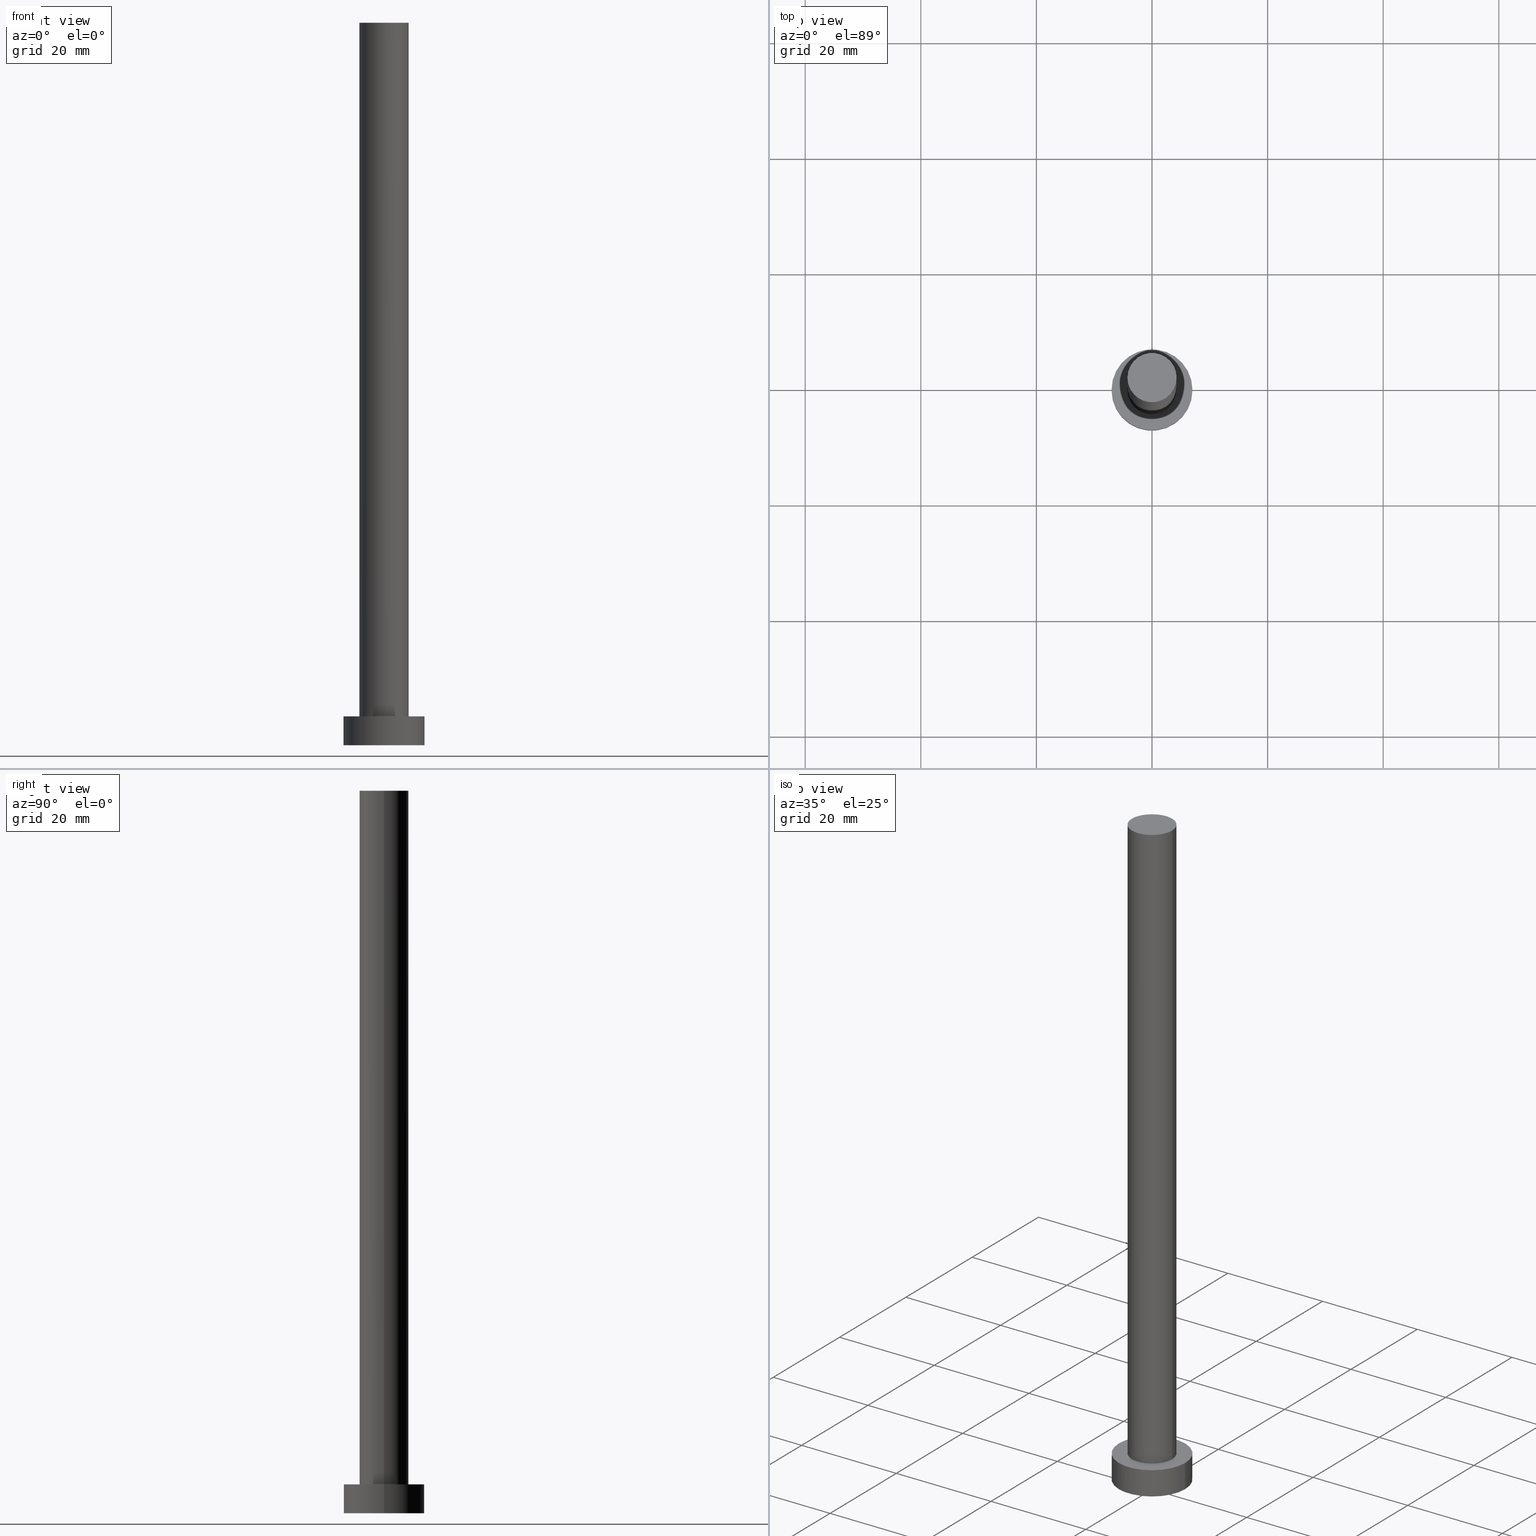
[diagram: canonical four-view strip — front | top / right | iso, engineering-drawing reading convention]
A machine part, canonical four-view strip (front | top / right | iso — engineering-drawing reading convention). The complete STEP part file that produces these views, byte-faithful:
ISO-10303-21;
HEADER;
FILE_DESCRIPTION (( 'STEP AP203' ),
    '1' );
FILE_NAME ('a0c9.STEP',
    '2023-02-12T11:38:38',
    ( '' ),
    ( '' ),
    'SwSTEP 2.0',
    'SolidWorks 2019',
    '' );
FILE_SCHEMA (( 'CONFIG_CONTROL_DESIGN' ));
ENDSEC;

DATA;
#1 = DIRECTION ( 'NONE',  ( -1.000000000000000000, 0.000000000000000000, 0.000000000000000000 ) ) ;
#2 = CLOSED_SHELL ( 'NONE', ( #228, #4, #97, #40, #191, #223, #181 ) ) ;
#3 = DIRECTION ( 'NONE',  ( 0.000000000000000000, 0.000000000000000000, 1.000000000000000000 ) ) ;
#4 = ADVANCED_FACE ( 'NONE', ( #84 ), #5, .T. ) ;
#5 = CYLINDRICAL_SURFACE ( 'NONE', #35, 7.000000000000000000 ) ;
#6 = DATE_AND_TIME ( #60, #253 ) ;
#7 = AXIS2_PLACEMENT_3D ( 'NONE', #237, #81, #158 ) ;
#8 = APPROVAL_DATE_TIME ( #107, #167 ) ;
#9 = CIRCLE ( 'NONE', #155, 7.000000000000000000 ) ;
#10 = SHAPE_DEFINITION_REPRESENTATION ( #244, #153 ) ;
#11 = DESIGN_CONTEXT ( 'detailed design', #219, 'design' ) ;
#12 = LOCAL_TIME ( 12, 38, 38.00000000000000000, #36 ) ;
#13 = APPROVAL ( #250, 'NEUR�EN�' ) ;
#14 = EDGE_CURVE ( 'NONE', #110, #33, #54, .T. ) ;
#15 = DIRECTION ( 'NONE',  ( 1.000000000000000000, 0.000000000000000000, 0.000000000000000000 ) ) ;
#16 = ORIENTED_EDGE ( 'NONE', *, *, #132, .F. ) ;
#17 = CARTESIAN_POINT ( 'NONE',  ( -7.000000000000000000, 0.000000000000000000, 5.000000000000000000 ) ) ;
#18 = DIRECTION ( 'NONE',  ( 1.000000000000000000, 0.000000000000000000, 0.000000000000000000 ) ) ;
#19 = DIRECTION ( 'NONE',  ( 0.000000000000000000, 0.000000000000000000, 1.000000000000000000 ) ) ;
#20 = ORIENTED_EDGE ( 'NONE', *, *, #27, .F. ) ;
#21 = ORIENTED_EDGE ( 'NONE', *, *, #157, .T. ) ;
#22 = EDGE_CURVE ( 'NONE', #67, #37, #70, .T. ) ;
#23 = AXIS2_PLACEMENT_3D ( 'NONE', #225, #224, #207 ) ;
#24 = CARTESIAN_POINT ( 'NONE',  ( 0.000000000000000000, 0.000000000000000000, 5.000000000000000000 ) ) ;
#25 = VERTEX_POINT ( 'NONE', #120 ) ;
#26 = DATE_TIME_ROLE ( 'classification_date' ) ;
#27 = EDGE_CURVE ( 'NONE', #25, #233, #182, .T. ) ;
#28 = DIRECTION ( 'NONE',  ( 1.000000000000000000, 0.000000000000000000, 0.000000000000000000 ) ) ;
#29 = CC_DESIGN_APPROVAL ( #13, ( #175 ) ) ;
#30 = COORDINATED_UNIVERSAL_TIME_OFFSET ( 1, 0, .AHEAD. ) ;
#31 = CC_DESIGN_PERSON_AND_ORGANIZATION_ASSIGNMENT ( #178, #124, ( #117 ) ) ;
#32 = APPROVAL_STATUS ( 'not_yet_approved' ) ;
#33 = VERTEX_POINT ( 'NONE', #172 ) ;
#34 = PRODUCT_DEFINITION ( 'NEZN�M�', '', #117, #11 ) ;
#35 = AXIS2_PLACEMENT_3D ( 'NONE', #105, #179, #1 ) ;
#36 = COORDINATED_UNIVERSAL_TIME_OFFSET ( 1, 0, .AHEAD. ) ;
#37 = VERTEX_POINT ( 'NONE', #186 ) ;
#38 = DIRECTION ( 'NONE',  ( 0.000000000000000000, 0.000000000000000000, 1.000000000000000000 ) ) ;
#39 = DIRECTION ( 'NONE',  ( 0.000000000000000000, 0.000000000000000000, 1.000000000000000000 ) ) ;
#40 = ADVANCED_FACE ( 'NONE', ( #162, #203 ), #184, .T. ) ;
#41 = CARTESIAN_POINT ( 'NONE',  ( 0.000000000000000000, 0.000000000000000000, 125.0000000000000000 ) ) ;
#42 = AXIS2_PLACEMENT_3D ( 'NONE', #227, #208, #143 ) ;
#43 = CIRCLE ( 'NONE', #44, 7.000000000000000000 ) ;
#44 = AXIS2_PLACEMENT_3D ( 'NONE', #73, #55, #18 ) ;
#45 = PERSON_AND_ORGANIZATION ( #232, #90 ) ;
#46 = COORDINATED_UNIVERSAL_TIME_OFFSET ( 1, 0, .AHEAD. ) ;
#47 = DIRECTION ( 'NONE',  ( 0.000000000000000000, 0.000000000000000000, 1.000000000000000000 ) ) ;
#48 = ORIENTED_EDGE ( 'NONE', *, *, #27, .T. ) ;
#49 = CARTESIAN_POINT ( 'NONE',  ( -4.250000000000000000, 0.000000000000000000, 125.0000000000000000 ) ) ;
#50 = DIRECTION ( 'NONE',  ( 0.000000000000000000, 0.000000000000000000, 1.000000000000000000 ) ) ;
#51 = PERSON_AND_ORGANIZATION_ROLE ( 'design_owner' ) ;
#52 = ORIENTED_EDGE ( 'NONE', *, *, #151, .T. ) ;
#53 = FACE_OUTER_BOUND ( 'NONE', #79, .T. ) ;
#54 = CIRCLE ( 'NONE', #99, 4.250000000000000000 ) ;
#55 = DIRECTION ( 'NONE',  ( 0.000000000000000000, 0.000000000000000000, 1.000000000000000000 ) ) ;
#56 = EDGE_CURVE ( 'NONE', #37, #67, #148, .T. ) ;
#57 = ORIENTED_EDGE ( 'NONE', *, *, #56, .F. ) ;
#58 = CARTESIAN_POINT ( 'NONE',  ( 0.000000000000000000, 0.000000000000000000, 125.0000000000000000 ) ) ;
#59 = FACE_OUTER_BOUND ( 'NONE', #71, .T. ) ;
#60 = CALENDAR_DATE ( 2023, 12, 2 ) ;
#61 = CARTESIAN_POINT ( 'NONE',  ( 0.000000000000000000, 0.000000000000000000, 0.000000000000000000 ) ) ;
#62 = LOCAL_TIME ( 12, 38, 38.00000000000000000, #74 ) ;
#63 = ORIENTED_EDGE ( 'NONE', *, *, #212, .T. ) ;
#64 = VERTEX_POINT ( 'NONE', #92 ) ;
#65 = UNCERTAINTY_MEASURE_WITH_UNIT (LENGTH_MEASURE( 1.000000000000000082E-05 ), #166, 'distance_accuracy_value', 'NONE');
#66 = CC_DESIGN_APPROVAL ( #167, ( #34 ) ) ;
#67 = VERTEX_POINT ( 'NONE', #49 ) ;
#68 = APPLICATION_PROTOCOL_DEFINITION ( 'international standard', 'config_control_design', 1994, #96 ) ;
#69 = LINE ( 'NONE', #137, #134 ) ;
#70 = CIRCLE ( 'NONE', #226, 4.250000000000000000 ) ;
#71 = EDGE_LOOP ( 'NONE', ( #129, #251 ) ) ;
#72 = AXIS2_PLACEMENT_3D ( 'NONE', #144, #50, #94 ) ;
#73 = CARTESIAN_POINT ( 'NONE',  ( 0.000000000000000000, 0.000000000000000000, 5.000000000000000000 ) ) ;
#74 = COORDINATED_UNIVERSAL_TIME_OFFSET ( 1, 0, .AHEAD. ) ;
#75 = MANIFOLD_SOLID_BREP ( 'P�idat vysunut�m3', #2 ) ;
#76 = AXIS2_PLACEMENT_3D ( 'NONE', #61, #187, #150 ) ;
#77 = CARTESIAN_POINT ( 'NONE',  ( 0.000000000000000000, 0.000000000000000000, 0.000000000000000000 ) ) ;
#78 = CIRCLE ( 'NONE', #133, 4.250000000000000000 ) ;
#79 = EDGE_LOOP ( 'NONE', ( #171, #20, #164, #127 ) ) ;
#80 = CC_DESIGN_DATE_AND_TIME_ASSIGNMENT ( #195, #26, ( #175 ) ) ;
#81 = DIRECTION ( 'NONE',  ( 0.000000000000000000, 0.000000000000000000, 1.000000000000000000 ) ) ;
#82 = CARTESIAN_POINT ( 'NONE',  ( 0.000000000000000000, 0.000000000000000000, 5.000000000000000000 ) ) ;
#83 = CALENDAR_DATE ( 2023, 12, 2 ) ;
#84 = FACE_OUTER_BOUND ( 'NONE', #230, .T. ) ;
#85 = CARTESIAN_POINT ( 'NONE',  ( 0.000000000000000000, 0.000000000000000000, 125.0000000000000000 ) ) ;
#86 = ORIENTED_EDGE ( 'NONE', *, *, #157, .F. ) ;
#87 = CALENDAR_DATE ( 2023, 12, 2 ) ;
#88 = EDGE_CURVE ( 'NONE', #67, #110, #248, .T. ) ;
#89 = ORIENTED_EDGE ( 'NONE', *, *, #14, .F. ) ;
#90 = ORGANIZATION ( 'NEUR�EN�', 'NEUR�EN�', '' ) ;
#91 = LOCAL_TIME ( 12, 38, 38.00000000000000000, #46 ) ;
#92 = CARTESIAN_POINT ( 'NONE',  ( 7.000000000000000000, 8.572527594031473190E-16, 0.000000000000000000 ) ) ;
#93 = CARTESIAN_POINT ( 'NONE',  ( 0.000000000000000000, 0.000000000000000000, 5.000000000000000000 ) ) ;
#94 = DIRECTION ( 'NONE',  ( 1.000000000000000000, 0.000000000000000000, -0.000000000000000000 ) ) ;
#95 = ORIENTED_EDGE ( 'NONE', *, *, #247, .T. ) ;
#96 = APPLICATION_CONTEXT ( 'configuration controlled 3d designs of mechanical parts and assemblies' ) ;
#97 = ADVANCED_FACE ( 'NONE', ( #53 ), #165, .T. ) ;
#98 = FACE_OUTER_BOUND ( 'NONE', #138, .T. ) ;
#99 = AXIS2_PLACEMENT_3D ( 'NONE', #82, #214, #106 ) ;
#100 = DIRECTION ( 'NONE',  ( -0.000000000000000000, -0.000000000000000000, -1.000000000000000000 ) ) ;
#101 = ORIENTED_EDGE ( 'NONE', *, *, #14, .T. ) ;
#102 = DIRECTION ( 'NONE',  ( -0.000000000000000000, -0.000000000000000000, -1.000000000000000000 ) ) ;
#103 = VERTEX_POINT ( 'NONE', #145 ) ;
#104 = DIRECTION ( 'NONE',  ( 1.000000000000000000, 0.000000000000000000, 0.000000000000000000 ) ) ;
#105 = CARTESIAN_POINT ( 'NONE',  ( 0.000000000000000000, 0.000000000000000000, 5.000000000000000000 ) ) ;
#106 = DIRECTION ( 'NONE',  ( 1.000000000000000000, 0.000000000000000000, 0.000000000000000000 ) ) ;
#107 = DATE_AND_TIME ( #146, #113 ) ;
#108 = EDGE_LOOP ( 'NONE', ( #205, #222 ) ) ;
#109 = EDGE_CURVE ( 'NONE', #103, #64, #202, .T. ) ;
#110 = VERTEX_POINT ( 'NONE', #136 ) ;
#111 = APPROVAL_DATE_TIME ( #189, #13 ) ;
#112 = VECTOR ( 'NONE', #242, 1000.000000000000000 ) ;
#113 = LOCAL_TIME ( 12, 38, 38.00000000000000000, #30 ) ;
#114 = DIRECTION ( 'NONE',  ( -0.000000000000000000, -0.000000000000000000, -1.000000000000000000 ) ) ;
#115 = CARTESIAN_POINT ( 'NONE',  ( -4.250000000000000000, 0.000000000000000000, 125.0000000000000000 ) ) ;
#116 = VECTOR ( 'NONE', #152, 1000.000000000000000 ) ;
#117 = PRODUCT_DEFINITION_FORMATION_WITH_SPECIFIED_SOURCE ( 'LIBOVOLN�', '', #154, .NOT_KNOWN. ) ;
#118 = CC_DESIGN_PERSON_AND_ORGANIZATION_ASSIGNMENT ( #125, #239, ( #117 ) ) ;
#119 = CALENDAR_DATE ( 2023, 12, 2 ) ;
#120 = CARTESIAN_POINT ( 'NONE',  ( -7.000000000000000000, 0.000000000000000000, 5.000000000000000000 ) ) ;
#121 = AXIS2_PLACEMENT_3D ( 'NONE', #24, #38, #15 ) ;
#122 = DIRECTION ( 'NONE',  ( -0.000000000000000000, -0.000000000000000000, -1.000000000000000000 ) ) ;
#123 = PLANE ( 'NONE',  #229 ) ;
#124 = PERSON_AND_ORGANIZATION_ROLE ( 'creator' ) ;
#125 = PERSON_AND_ORGANIZATION ( #232, #90 ) ;
#126 = CC_DESIGN_DATE_AND_TIME_ASSIGNMENT ( #128, #185, ( #34 ) ) ;
#127 = ORIENTED_EDGE ( 'NONE', *, *, #109, .T. ) ;
#128 = DATE_AND_TIME ( #87, #91 ) ;
#129 = ORIENTED_EDGE ( 'NONE', *, *, #22, .T. ) ;
#130 = APPROVAL_PERSON_ORGANIZATION ( #173, #13, #215 ) ;
#131 = EDGE_LOOP ( 'NONE', ( #255, #140, #190, #101 ) ) ;
#132 = EDGE_CURVE ( 'NONE', #25, #103, #194, .T. ) ;
#133 = AXIS2_PLACEMENT_3D ( 'NONE', #240, #47, #28 ) ;
#134 = VECTOR ( 'NONE', #213, 1000.000000000000000 ) ;
#135 = PERSON_AND_ORGANIZATION ( #232, #90 ) ;
#136 = CARTESIAN_POINT ( 'NONE',  ( -4.250000000000000000, 0.000000000000000000, 5.000000000000000000 ) ) ;
#137 = CARTESIAN_POINT ( 'NONE',  ( 7.000000000000000000, 8.572527594031473190E-16, 5.000000000000000000 ) ) ;
#138 = EDGE_LOOP ( 'NONE', ( #57, #63, #95, #218 ) ) ;
#139 = COORDINATED_UNIVERSAL_TIME_OFFSET ( 1, 0, .AHEAD. ) ;
#140 = ORIENTED_EDGE ( 'NONE', *, *, #22, .F. ) ;
#141 = PERSON_AND_ORGANIZATION ( #232, #90 ) ;
#142 = CC_DESIGN_PERSON_AND_ORGANIZATION_ASSIGNMENT ( #45, #217, ( #34 ) ) ;
#143 = DIRECTION ( 'NONE',  ( 1.000000000000000000, 0.000000000000000000, 0.000000000000000000 ) ) ;
#144 = CARTESIAN_POINT ( 'NONE',  ( 0.000000000000000000, 0.000000000000000000, 125.0000000000000000 ) ) ;
#145 = CARTESIAN_POINT ( 'NONE',  ( -7.000000000000000000, 0.000000000000000000, 0.000000000000000000 ) ) ;
#146 = CALENDAR_DATE ( 2023, 12, 2 ) ;
#147 = DIRECTION ( 'NONE',  ( -1.000000000000000000, 0.000000000000000000, 0.000000000000000000 ) ) ;
#148 = CIRCLE ( 'NONE', #42, 4.250000000000000000 ) ;
#149 = AXIS2_PLACEMENT_3D ( 'NONE', #41, #122, #197 ) ;
#150 = DIRECTION ( 'NONE',  ( 1.000000000000000000, 0.000000000000000000, 0.000000000000000000 ) ) ;
#151 = EDGE_CURVE ( 'NONE', #233, #64, #69, .T. ) ;
#152 = DIRECTION ( 'NONE',  ( -0.000000000000000000, -0.000000000000000000, -1.000000000000000000 ) ) ;
#153 = ADVANCED_BREP_SHAPE_REPRESENTATION ( 'a0c9', ( #75, #23 ), #199 ) ;
#154 = PRODUCT ( 'a0c9', 'a0c9', '', ( #206 ) ) ;
#155 = AXIS2_PLACEMENT_3D ( 'NONE', #77, #19, #104 ) ;
#156 = FACE_OUTER_BOUND ( 'NONE', #131, .T. ) ;
#157 = EDGE_CURVE ( 'NONE', #233, #25, #43, .T. ) ;
#158 = DIRECTION ( 'NONE',  ( 1.000000000000000000, 0.000000000000000000, -0.000000000000000000 ) ) ;
#159 = PERSON_AND_ORGANIZATION ( #232, #90 ) ;
#160 = APPROVAL_STATUS ( 'not_yet_approved' ) ;
#161 = APPROVAL_DATE_TIME ( #6, #200 ) ;
#162 = FACE_BOUND ( 'NONE', #254, .T. ) ;
#163 = ORIENTED_EDGE ( 'NONE', *, *, #204, .T. ) ;
#164 = ORIENTED_EDGE ( 'NONE', *, *, #132, .T. ) ;
#165 = CYLINDRICAL_SURFACE ( 'NONE', #193, 7.000000000000000000 ) ;
#166 =( LENGTH_UNIT ( ) NAMED_UNIT ( * ) SI_UNIT ( .MILLI., .METRE. ) );
#167 = APPROVAL ( #32, 'NEUR�EN�' ) ;
#168 = PERSON_AND_ORGANIZATION ( #232, #90 ) ;
#169 = FACE_OUTER_BOUND ( 'NONE', #108, .T. ) ;
#170 = APPROVAL_ROLE ( '' ) ;
#171 = ORIENTED_EDGE ( 'NONE', *, *, #151, .F. ) ;
#172 = CARTESIAN_POINT ( 'NONE',  ( 4.250000000000000000, 5.204748896376250699E-16, 5.000000000000000000 ) ) ;
#173 = PERSON_AND_ORGANIZATION ( #232, #90 ) ;
#174 = DIRECTION ( 'NONE',  ( 1.000000000000000000, 0.000000000000000000, 0.000000000000000000 ) ) ;
#175 = SECURITY_CLASSIFICATION ( '', '', #201 ) ;
#176 = CYLINDRICAL_SURFACE ( 'NONE', #183, 4.250000000000000000 ) ;
#177 = DIRECTION ( 'NONE',  ( -1.000000000000000000, 0.000000000000000000, 0.000000000000000000 ) ) ;
#178 = PERSON_AND_ORGANIZATION ( #232, #90 ) ;
#179 = DIRECTION ( 'NONE',  ( -0.000000000000000000, -0.000000000000000000, -1.000000000000000000 ) ) ;
#180 = CARTESIAN_POINT ( 'NONE',  ( 0.000000000000000000, 0.000000000000000000, 0.000000000000000000 ) ) ;
#181 = ADVANCED_FACE ( 'NONE', ( #59 ), #210, .T. ) ;
#182 = CIRCLE ( 'NONE', #121, 7.000000000000000000 ) ;
#183 = AXIS2_PLACEMENT_3D ( 'NONE', #58, #102, #177 ) ;
#184 = PLANE ( 'NONE',  #7 ) ;
#185 = DATE_TIME_ROLE ( 'creation_date' ) ;
#186 = CARTESIAN_POINT ( 'NONE',  ( 4.250000000000000000, 5.204748896376250699E-16, 125.0000000000000000 ) ) ;
#187 = DIRECTION ( 'NONE',  ( 0.000000000000000000, 0.000000000000000000, 1.000000000000000000 ) ) ;
#188 = CC_DESIGN_PERSON_AND_ORGANIZATION_ASSIGNMENT ( #168, #51, ( #154 ) ) ;
#189 = DATE_AND_TIME ( #119, #62 ) ;
#190 = ORIENTED_EDGE ( 'NONE', *, *, #88, .T. ) ;
#191 = ADVANCED_FACE ( 'NONE', ( #169 ), #123, .F. ) ;
#192 = EDGE_LOOP ( 'NONE', ( #48, #21 ) ) ;
#193 = AXIS2_PLACEMENT_3D ( 'NONE', #93, #114, #147 ) ;
#194 = LINE ( 'NONE', #17, #116 ) ;
#195 = DATE_AND_TIME ( #83, #12 ) ;
#196 = DIRECTION ( 'NONE',  ( 1.000000000000000000, 0.000000000000000000, -0.000000000000000000 ) ) ;
#197 = DIRECTION ( 'NONE',  ( -1.000000000000000000, 0.000000000000000000, 0.000000000000000000 ) ) ;
#198 = APPROVAL_PERSON_ORGANIZATION ( #159, #200, #235 ) ;
#199 =( GEOMETRIC_REPRESENTATION_CONTEXT ( 3 ) GLOBAL_UNCERTAINTY_ASSIGNED_CONTEXT ( ( #65 ) ) GLOBAL_UNIT_ASSIGNED_CONTEXT ( ( #166, #245, #209 ) ) REPRESENTATION_CONTEXT ( 'NONE', 'WORKASPACE' ) );
#200 = APPROVAL ( #160, 'NEUR�EN�' ) ;
#201 = SECURITY_CLASSIFICATION_LEVEL ( 'unclassified' ) ;
#202 = CIRCLE ( 'NONE', #76, 7.000000000000000000 ) ;
#203 = FACE_OUTER_BOUND ( 'NONE', #192, .T. ) ;
#204 = EDGE_CURVE ( 'NONE', #64, #103, #9, .T. ) ;
#205 = ORIENTED_EDGE ( 'NONE', *, *, #109, .F. ) ;
#206 = MECHANICAL_CONTEXT ( 'NONE', #96, 'mechanical' ) ;
#207 = DIRECTION ( 'NONE',  ( 1.000000000000000000, 0.000000000000000000, 0.000000000000000000 ) ) ;
#208 = DIRECTION ( 'NONE',  ( 0.000000000000000000, 0.000000000000000000, 1.000000000000000000 ) ) ;
#209 =( NAMED_UNIT ( * ) SI_UNIT ( $, .STERADIAN. ) SOLID_ANGLE_UNIT ( ) );
#210 = PLANE ( 'NONE',  #72 ) ;
#211 = PERSON_AND_ORGANIZATION_ROLE ( 'classification_officer' ) ;
#212 = EDGE_CURVE ( 'NONE', #37, #33, #216, .T. ) ;
#213 = DIRECTION ( 'NONE',  ( -0.000000000000000000, -0.000000000000000000, -1.000000000000000000 ) ) ;
#214 = DIRECTION ( 'NONE',  ( 0.000000000000000000, 0.000000000000000000, 1.000000000000000000 ) ) ;
#215 = APPROVAL_ROLE ( '' ) ;
#216 = LINE ( 'NONE', #234, #243 ) ;
#217 = PERSON_AND_ORGANIZATION_ROLE ( 'creator' ) ;
#218 = ORIENTED_EDGE ( 'NONE', *, *, #88, .F. ) ;
#219 = APPLICATION_CONTEXT ( 'configuration controlled 3d designs of mechanical parts and assemblies' ) ;
#220 = PRODUCT_RELATED_PRODUCT_CATEGORY ( 'detail', '', ( #154 ) ) ;
#221 = APPROVAL_PERSON_ORGANIZATION ( #135, #167, #170 ) ;
#222 = ORIENTED_EDGE ( 'NONE', *, *, #204, .F. ) ;
#223 = ADVANCED_FACE ( 'NONE', ( #156 ), #231, .T. ) ;
#224 = DIRECTION ( 'NONE',  ( 0.000000000000000000, 0.000000000000000000, 1.000000000000000000 ) ) ;
#225 = CARTESIAN_POINT ( 'NONE',  ( 0.000000000000000000, 0.000000000000000000, 0.000000000000000000 ) ) ;
#226 = AXIS2_PLACEMENT_3D ( 'NONE', #85, #3, #174 ) ;
#227 = CARTESIAN_POINT ( 'NONE',  ( 0.000000000000000000, 0.000000000000000000, 125.0000000000000000 ) ) ;
#228 = ADVANCED_FACE ( 'NONE', ( #98 ), #176, .T. ) ;
#229 = AXIS2_PLACEMENT_3D ( 'NONE', #180, #39, #196 ) ;
#230 = EDGE_LOOP ( 'NONE', ( #86, #52, #163, #16 ) ) ;
#231 = CYLINDRICAL_SURFACE ( 'NONE', #149, 4.250000000000000000 ) ;
#232 = PERSON ( 'NEUR�EN�', 'NEUR�EN�', 'NEUR�EN�', ('NEUR�EN�'), ('NEUR�EN�'), ('NEUR�EN�') ) ;
#233 = VERTEX_POINT ( 'NONE', #238 ) ;
#234 = CARTESIAN_POINT ( 'NONE',  ( 4.250000000000000000, 5.204748896376250699E-16, 125.0000000000000000 ) ) ;
#235 = APPROVAL_ROLE ( '' ) ;
#236 = CC_DESIGN_PERSON_AND_ORGANIZATION_ASSIGNMENT ( #141, #211, ( #175 ) ) ;
#237 = CARTESIAN_POINT ( 'NONE',  ( 0.000000000000000000, 0.000000000000000000, 5.000000000000000000 ) ) ;
#238 = CARTESIAN_POINT ( 'NONE',  ( 7.000000000000000000, 8.572527594031473190E-16, 5.000000000000000000 ) ) ;
#239 = PERSON_AND_ORGANIZATION_ROLE ( 'design_supplier' ) ;
#240 = CARTESIAN_POINT ( 'NONE',  ( 0.000000000000000000, 0.000000000000000000, 5.000000000000000000 ) ) ;
#241 = CC_DESIGN_SECURITY_CLASSIFICATION ( #175, ( #117 ) ) ;
#242 = DIRECTION ( 'NONE',  ( -0.000000000000000000, -0.000000000000000000, -1.000000000000000000 ) ) ;
#243 = VECTOR ( 'NONE', #100, 1000.000000000000000 ) ;
#244 = PRODUCT_DEFINITION_SHAPE ( 'NONE', 'NONE',  #34 ) ;
#245 =( NAMED_UNIT ( * ) PLANE_ANGLE_UNIT ( ) SI_UNIT ( $, .RADIAN. ) );
#246 = APPLICATION_PROTOCOL_DEFINITION ( 'international standard', 'config_control_design', 1994, #219 ) ;
#247 = EDGE_CURVE ( 'NONE', #33, #110, #78, .T. ) ;
#248 = LINE ( 'NONE', #115, #112 ) ;
#249 = CC_DESIGN_APPROVAL ( #200, ( #117 ) ) ;
#250 = APPROVAL_STATUS ( 'not_yet_approved' ) ;
#251 = ORIENTED_EDGE ( 'NONE', *, *, #56, .T. ) ;
#252 = ORIENTED_EDGE ( 'NONE', *, *, #247, .F. ) ;
#253 = LOCAL_TIME ( 12, 38, 38.00000000000000000, #139 ) ;
#254 = EDGE_LOOP ( 'NONE', ( #89, #252 ) ) ;
#255 = ORIENTED_EDGE ( 'NONE', *, *, #212, .F. ) ;
ENDSEC;
END-ISO-10303-21;
